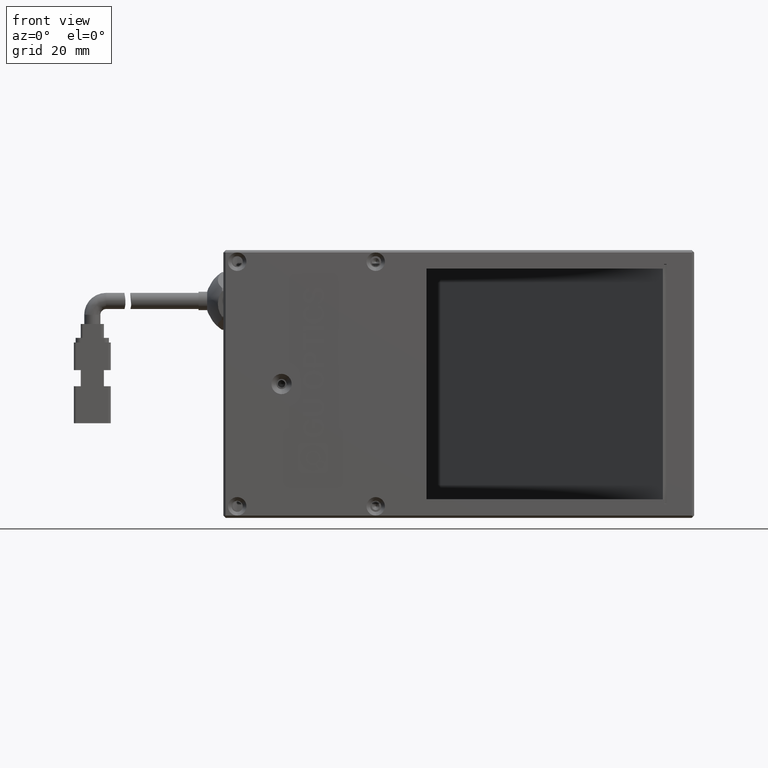
[diagram: clean part render]
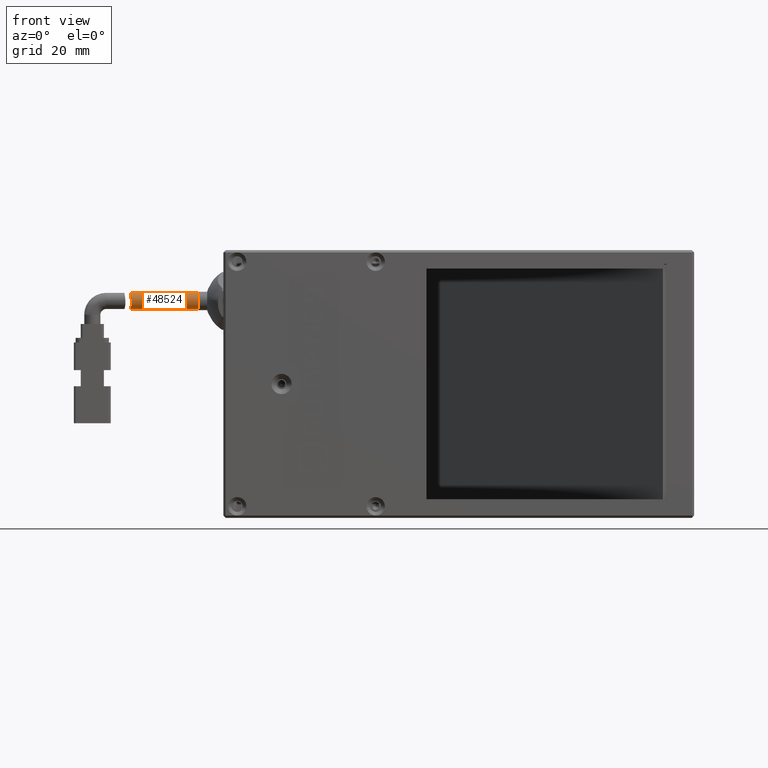
[diagram: same view with one face highlighted and labeled with its STEP entity id]
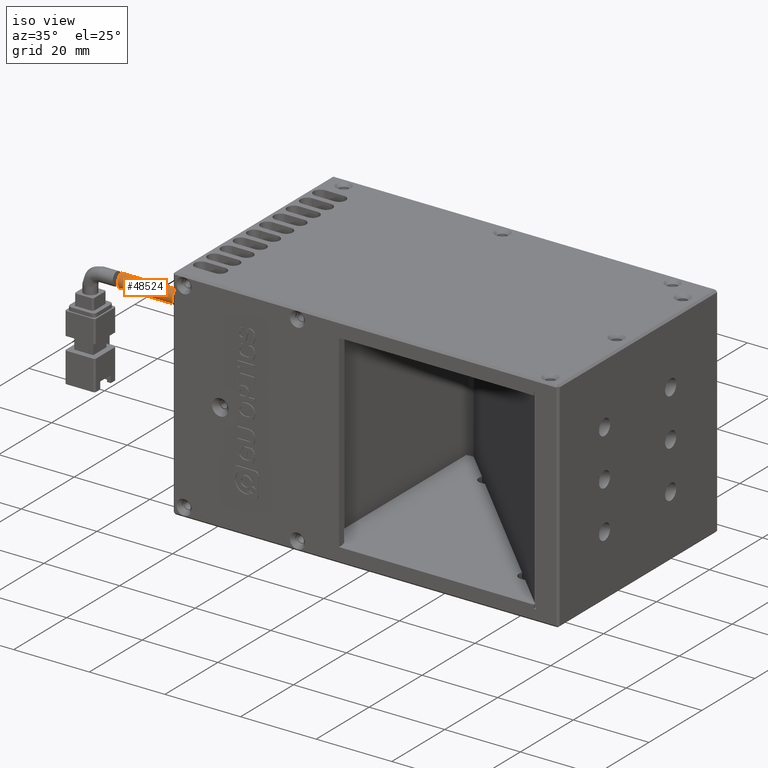
[diagram: same view with one face highlighted and labeled with its STEP entity id]
A machine part, front view. The second image highlights one B-rep face of the part: STEP entity #48524.
A second angle (iso view) of the same face is appended — the face is thin or edge-on in the first view.
In plain terms, the highlighted cylindrical surface (edge-blend (fillet) strip) has radius 1.75 mm, axis along (1, 0, 0).
Its self-contained STEP definition (entity closure, byte-faithful):
#1214 = CARTESIAN_POINT ( 'NONE',  ( -88.74383224263381500, 1.321592689043296300, 48.69384090749622400 ) ) ;
#1439 = CARTESIAN_POINT ( 'NONE',  ( -88.52561923163772000, 0.1151226661819604500, 46.43675133809967500 ) ) ;
#3590 = VERTEX_POINT ( 'NONE', #22749 ) ;
#6591 = CARTESIAN_POINT ( 'NONE',  ( -88.72004260009758500, 0.9982571947268422700, 48.57187567479663000 ) ) ;
#6808 = CARTESIAN_POINT ( 'NONE',  ( -88.57007949648084400, 0.3762444674709717300, 45.92487345863637000 ) ) ;
#7768 = AXIS2_PLACEMENT_3D ( 'NONE', #58842, #21800, #48455 ) ;
#11845 = CARTESIAN_POINT ( 'NONE',  ( -88.68653990908335100, 0.7078049153765848500, 48.39087783759264000 ) ) ;
#12080 = CARTESIAN_POINT ( 'NONE',  ( -88.62697024365076000, 0.7075763214079884300, 45.60934779125003000 ) ) ;
#12237 = CARTESIAN_POINT ( 'NONE',  ( -73.97424922391157100, 1.775993330902716300, 48.75000000000893200 ) ) ;
#17196 = CARTESIAN_POINT ( 'NONE',  ( -88.63319322710073300, 0.3770099978557668900, 48.07568568062745100 ) ) ;
#17408 = CARTESIAN_POINT ( 'NONE',  ( -88.66886570368053800, 0.9988053158561638300, 45.42789178838344800 ) ) ;
#17506 = CARTESIAN_POINT ( 'NONE',  ( -88.75508915640887200, 1.775993330902716300, 48.75000000000892400 ) ) ;
#20616 = FACE_OUTER_BOUND ( 'NONE', #23500, .T. ) ;
#21800 = DIRECTION ( 'NONE',  ( 1.000000000000000000, 0.0000000000000000000, 0.0000000000000000000 ) ) ;
#22540 = CARTESIAN_POINT ( 'NONE',  ( -88.55475612069409400, 0.07263149240240990300, 47.46126996020699100 ) ) ;
#22749 = CARTESIAN_POINT ( 'NONE',  ( -88.71796866307188600, 1.775993330902716000, 45.25000000000893200 ) ) ;
#22760 = CARTESIAN_POINT ( 'NONE',  ( -88.71796866307187200, 1.543831365002690900, 45.25000000000893900 ) ) ;
#22954 = EDGE_CURVE ( 'NONE', #3590, #29000, #56012, .T. ) ;
#23500 = EDGE_LOOP ( 'NONE', ( #47405, #40630, #41336, #57799 ) ) ;
#24982 = DIRECTION ( 'NONE',  ( 1.000000000000000000, 0.0000000000000000000, 0.0000000000000000000 ) ) ;
#26228 = CARTESIAN_POINT ( 'NONE',  ( -73.97424922391157100, 1.775993330902716000, 47.00000000000893200 ) ) ;
#27612 = CARTESIAN_POINT ( 'NONE',  ( -88.75508915640887200, 1.775993330902716300, 48.75000000000892400 ) ) ;
#27847 = CARTESIAN_POINT ( 'NONE',  ( -88.52139725795747400, 0.02585345650130978900, 46.88770767496731700 ) ) ;
#27990 = LINE ( 'NONE', #56710, #40463 ) ;
#28061 = CYLINDRICAL_SURFACE ( 'NONE', #7768, 1.750000000000001600 ) ;
#29000 = VERTEX_POINT ( 'NONE', #63160 ) ;
#29471 = VECTOR ( 'NONE', #34978, 1000.000000000000000 ) ;
#31445 = AXIS2_PLACEMENT_3D ( 'NONE', #26228, #63298, #31510 ) ;
#31510 = DIRECTION ( 'NONE',  ( 0.0000000000000000000, 0.0000000000000000000, -1.000000000000000000 ) ) ;
#32955 = CARTESIAN_POINT ( 'NONE',  ( -88.75277085715923400, 1.545885178955980400, 48.73857044770648600 ) ) ;
#33189 = CARTESIAN_POINT ( 'NONE',  ( -88.52167811299145200, 0.08197029803840971700, 46.54618348049838500 ) ) ;
#34978 = DIRECTION ( 'NONE',  ( 1.000000000000000000, 0.0000000000000000000, 0.0000000000000000000 ) ) ;
#38282 = CARTESIAN_POINT ( 'NONE',  ( -88.73709901180511400, 1.210166589966159600, 48.65997190752550200 ) ) ;
#38505 = CARTESIAN_POINT ( 'NONE',  ( -88.54568608247686300, 0.2471986526003675200, 46.11781605553690600 ) ) ;
#39020 = CIRCLE ( 'NONE', #31445, 1.750000000000001600 ) ;
#39600 = VERTEX_POINT ( 'NONE', #12237 ) ;
#40463 = VECTOR ( 'NONE', #24982, 1000.000000000000000 ) ;
#40630 = ORIENTED_EDGE ( 'NONE', *, *, #42469, .T. ) ;
#41336 = ORIENTED_EDGE ( 'NONE', *, *, #22954, .T. ) ;
#41849 = VERTEX_POINT ( 'NONE', #17506 ) ;
#42469 = EDGE_CURVE ( 'NONE', #41849, #3590, #49990, .T. ) ;
#43640 = CARTESIAN_POINT ( 'NONE',  ( -88.70978760711557200, 0.8978203733747932600, 48.51801841452582700 ) ) ;
#43871 = CARTESIAN_POINT ( 'NONE',  ( -88.61232753356546300, 0.6197220144447569400, 45.68139841768878300 ) ) ;
#47405 = ORIENTED_EDGE ( 'NONE', *, *, #48743, .F. ) ;
#48455 = DIRECTION ( 'NONE',  ( 0.0000000000000000000, 0.0000000000000000000, -1.000000000000000000 ) ) ;
#48524 = ADVANCED_FACE ( 'NONE', ( #20616 ), #28061, .T. ) ;
#48743 = EDGE_CURVE ( 'NONE', #41849, #39600, #27990, .T. ) ;
#48963 = CARTESIAN_POINT ( 'NONE',  ( -88.67347887741689800, 0.6181518425266553400, 48.31713385812769700 ) ) ;
#49192 = CARTESIAN_POINT ( 'NONE',  ( -88.65518062599991800, 0.8965102491461816000, 45.48278611238213600 ) ) ;
#49990 = B_SPLINE_CURVE_WITH_KNOTS ( 'NONE', 3,
 ( #27612, #54029, #32955, #1214, #38282, #6591, #43640, #11845, #48963, #17196, #54246, #22540, #59606, #27847, #64906, #33189, #1439, #38505, #6808, #43871, #12080, #49192, #17408, #54477, #22760, #59838 ),
 .UNSPECIFIED., .F., .F.,
 ( 4, 2, 2, 2, 2, 2, 2, 2, 2, 2, 2, 2, 4 ),
 ( 2.235455565251903800E-017, 0.0003431607499797126200, 0.0006863214999594029200, 0.001029482249939093300, 0.001372642999918783500, 0.002058964499878164400, 0.002745285999837544900, 0.003088446749817224300, 0.003431607499796903200, 0.004117928999756278500, 0.004461089749735965700, 0.004804250499715652000, 0.005490571999675030800 ),
 .UNSPECIFIED. ) ;
#50927 = CARTESIAN_POINT ( 'NONE',  ( -93.97424922391157100, 1.775993330902716000, 45.25000000000893200 ) ) ;
#54029 = CARTESIAN_POINT ( 'NONE',  ( -88.75508915640887200, 1.659940431381342000, 48.75000000000893200 ) ) ;
#54246 = CARTESIAN_POINT ( 'NONE',  ( -88.60379167720903100, 0.2470879724882492600, 47.88128311799758300 ) ) ;
#54477 = CARTESIAN_POINT ( 'NONE',  ( -88.70344065530638000, 1.315208073295726500, 45.29636896438320500 ) ) ;
#56012 = LINE ( 'NONE', #50927, #29471 ) ;
#56710 = CARTESIAN_POINT ( 'NONE',  ( -93.97424922391157100, 1.775993330902716300, 48.75000000000893200 ) ) ;
#57799 = ORIENTED_EDGE ( 'NONE', *, *, #61229, .T. ) ;
#58842 = CARTESIAN_POINT ( 'NONE',  ( -93.97424922391157100, 1.775993330902716000, 47.00000000000893200 ) ) ;
#59606 = CARTESIAN_POINT ( 'NONE',  ( -88.53486899505411100, 0.02627707542139369100, 47.23106191862423500 ) ) ;
#59838 = CARTESIAN_POINT ( 'NONE',  ( -88.71796866307188600, 1.775993330902716000, 45.25000000000893200 ) ) ;
#61229 = EDGE_CURVE ( 'NONE', #29000, #39600, #39020, .T. ) ;
#63160 = CARTESIAN_POINT ( 'NONE',  ( -73.97424922391157100, 1.775993330902716000, 45.25000000000893200 ) ) ;
#63298 = DIRECTION ( 'NONE',  ( -1.000000000000000000, -0.0000000000000000000, -0.0000000000000000000 ) ) ;
#64906 = CARTESIAN_POINT ( 'NONE',  ( -88.51952423886476100, 0.03721985981166263400, 46.77124186248057200 ) ) ;